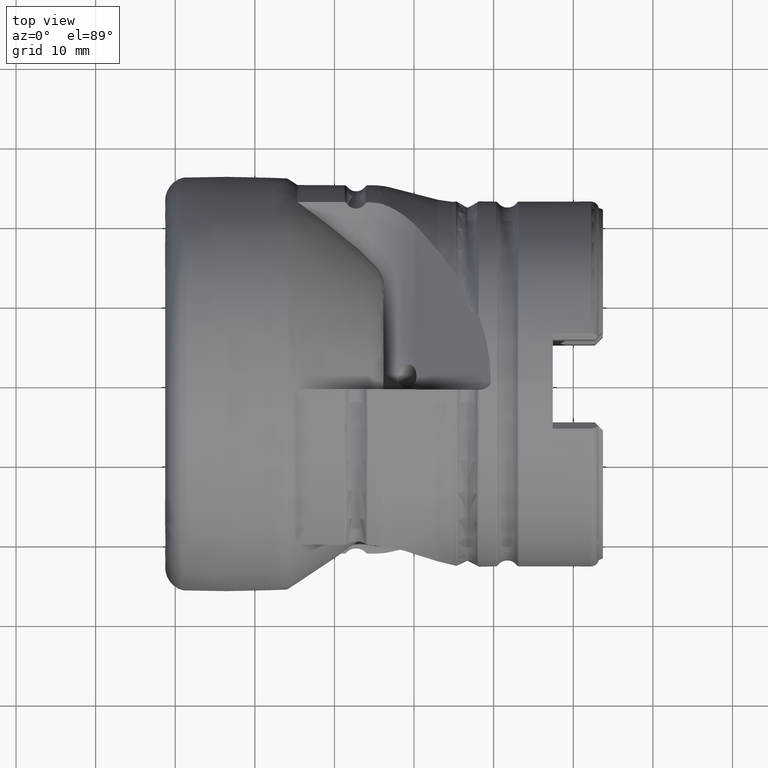
[diagram: clean part render]
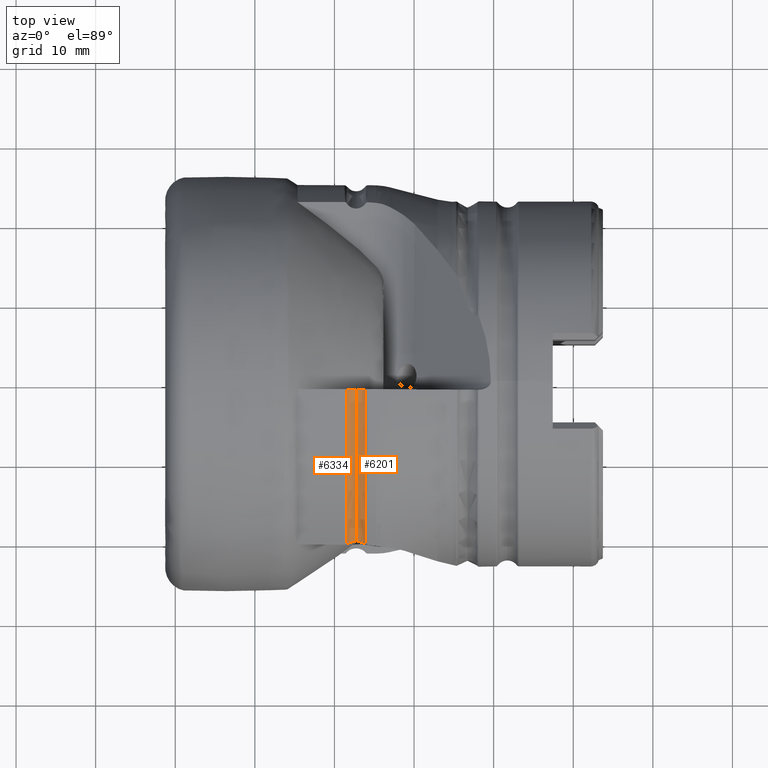
[diagram: same view with one multi-face feature highlighted, each face labeled with its STEP entity id]
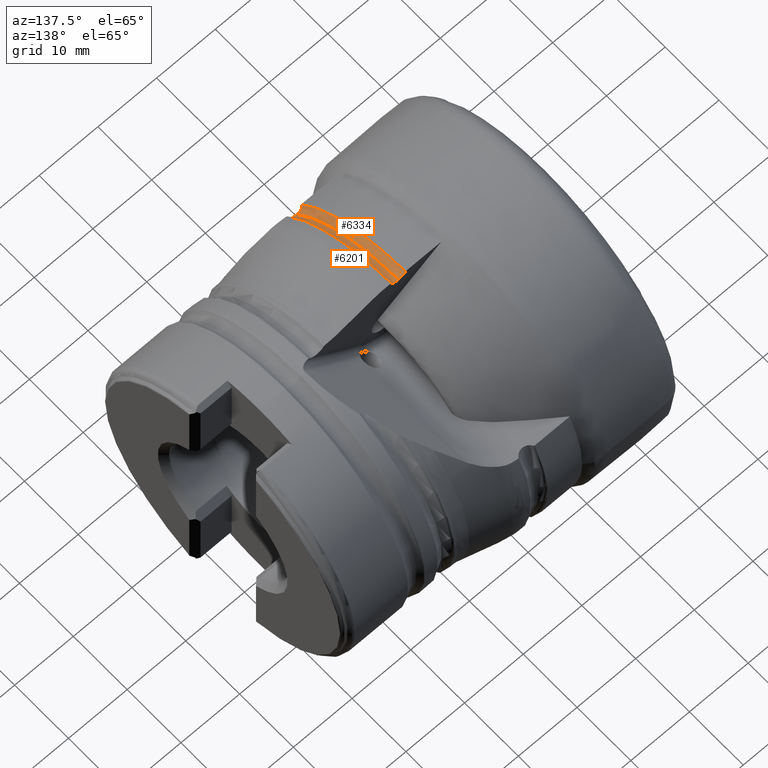
[diagram: same view with one multi-face feature highlighted, each face labeled with its STEP entity id]
A machine part, top view. The highlighted faces form ONE feature: a constant-radius fillet chain: 2 tangent blend faces with common blend radius 1.5 mm. The faces share edges in the B-rep.
A second angle (auxiliary view) of the same feature is appended — it is thin or edge-on in the first view.
Their STEP definitions:
[1] entity #6334 (Torus):
#66 = B_SPLINE_CURVE_WITH_KNOTS ( 'NONE', 3,
 ( #2435, #2404, #2402, #2436, #2437, #2438, #2439, #2440 ),
 .UNSPECIFIED., .F., .F.,
 ( 4, 2, 2, 4 ),
 ( 0.008729528105836697300, 0.009436591484580389100, 0.009790123173952235800, 0.01014365486332408400 ),
 .UNSPECIFIED. ) ;
#72 = B_SPLINE_CURVE_WITH_KNOTS ( 'NONE', 3,
 ( #2193, #2192, #2183, #2194, #2195, #2196, #2197, #2198 ),
 .UNSPECIFIED., .F., .F.,
 ( 4, 2, 2, 4 ),
 ( 0.0002780511728116997600, 0.0006409038394257694100, 0.001003756506039839100, 0.001729461839267986800 ),
 .UNSPECIFIED. ) ;
#396 = CARTESIAN_POINT ( 'NONE',  ( 21.50465070689887900, -20.36841224877557400, 14.27912488438732600 ) ) ;
#401 = CARTESIAN_POINT ( 'NONE',  ( 22.72299999999999900, -1.100000000000001600, 24.22503869965949600 ) ) ;
#994 = CARTESIAN_POINT ( 'NONE',  ( 21.50465070689888200, -1.100000000000001600, 24.85066649005616000 ) ) ;
#1832 = EDGE_CURVE ( 'NONE', #3991, #3748, #7253, .T. ) ;
#1840 = EDGE_CURVE ( 'NONE', #7147, #3996, #3196, .T. ) ;
#1850 = EDGE_CURVE ( 'NONE', #7147, #3991, #72, .T. ) ;
#1876 = EDGE_CURVE ( 'NONE', #3996, #3748, #66, .T. ) ;
#2183 = CARTESIAN_POINT ( 'NONE',  ( 22.47904005748705100, -20.03110115345837300, 13.69488492934123900 ) ) ;
#2192 = CARTESIAN_POINT ( 'NONE',  ( 22.60197085568003000, -20.02272807138518800, 13.68038232577453400 ) ) ;
#2193 = CARTESIAN_POINT ( 'NONE',  ( 22.72299999999999900, -20.02272807138518100, 13.68038232577452700 ) ) ;
#2194 = CARTESIAN_POINT ( 'NONE',  ( 22.24553393177978200, -20.06317680474768400, 13.75044158706019300 ) ) ;
#2195 = CARTESIAN_POINT ( 'NONE',  ( 22.13212054853909200, -20.08713970266454000, 13.79194654374877300 ) ) ;
#2196 = CARTESIAN_POINT ( 'NONE',  ( 21.81633428976944000, -20.17876690333944700, 13.95064951067301500 ) ) ;
#2197 = CARTESIAN_POINT ( 'NONE',  ( 21.63836564465898600, -20.26572308153014400, 14.10126202933130900 ) ) ;
#2198 = CARTESIAN_POINT ( 'NONE',  ( 21.50465070689887900, -20.36841224877557400, 14.27912488438732600 ) ) ;
#2402 = CARTESIAN_POINT ( 'NONE',  ( 22.24866572151830700, -1.100000000000001600, 24.28235209915471400 ) ) ;
#2404 = CARTESIAN_POINT ( 'NONE',  ( 22.48688400819759500, -1.100000000000001600, 24.22503869965949300 ) ) ;
#2435 = CARTESIAN_POINT ( 'NONE',  ( 22.72299999999999900, -1.100000000000001600, 24.22503869965949600 ) ) ;
#2436 = CARTESIAN_POINT ( 'NONE',  ( 21.93153609291817600, -1.100000000000001600, 24.44553247688742900 ) ) ;
#2437 = CARTESIAN_POINT ( 'NONE',  ( 21.83385517980614700, -1.100000000000001900, 24.51147374523684200 ) ) ;
#2438 = CARTESIAN_POINT ( 'NONE',  ( 21.65437906918861100, -1.100000000000001900, 24.66620421501406900 ) ) ;
#2439 = CARTESIAN_POINT ( 'NONE',  ( 21.57335040302083200, -1.100000000000001400, 24.75491542196107300 ) ) ;
#2440 = CARTESIAN_POINT ( 'NONE',  ( 21.50465070689888200, -1.100000000000001600, 24.85066649005616000 ) ) ;
#3094 = DIRECTION ( 'NONE',  ( 0.0000000000000000000, 0.0000000000000000000, 1.000000000000000000 ) ) ;
#3095 = DIRECTION ( 'NONE',  ( -1.000000000000000000, -0.0000000000000000000, -0.0000000000000000000 ) ) ;
#3096 = CARTESIAN_POINT ( 'NONE',  ( 21.50465070689888200, 0.0000000000000000000, 0.0000000000000000000 ) ) ;
#3196 = CIRCLE ( 'NONE', #6384, 24.25000000000000700 ) ;
#3748 = VERTEX_POINT ( 'NONE', #994 ) ;
#3991 = VERTEX_POINT ( 'NONE', #396 ) ;
#3996 = VERTEX_POINT ( 'NONE', #401 ) ;
#4137 = ORIENTED_EDGE ( 'NONE', *, *, #1876, .T. ) ;
#4138 = ORIENTED_EDGE ( 'NONE', *, *, #1832, .F. ) ;
#4148 = ORIENTED_EDGE ( 'NONE', *, *, #1850, .F. ) ;
#4191 = ORIENTED_EDGE ( 'NONE', *, *, #1840, .T. ) ;
#4887 = TOROIDAL_SURFACE ( 'NONE', #6661, 25.75000000000000700, 1.499999999999999300 ) ;
#4888 = FACE_OUTER_BOUND ( 'NONE', #7124, .T. ) ;
#5030 = DIRECTION ( 'NONE',  ( -1.000000000000000000, -0.0000000000000000000, -0.0000000000000000000 ) ) ;
#5167 = CARTESIAN_POINT ( 'NONE',  ( 22.72299999999999900, 0.0000000000000000000, 0.0000000000000000000 ) ) ;
#5169 = DIRECTION ( 'NONE',  ( 0.0000000000000000000, 0.0000000000000000000, 1.000000000000000000 ) ) ;
#5210 = CARTESIAN_POINT ( 'NONE',  ( 22.72299999999999900, -20.02272807138518100, 13.68038232577452700 ) ) ;
#6087 = DIRECTION ( 'NONE',  ( 0.0000000000000000000, 0.0000000000000000000, 1.000000000000000000 ) ) ;
#6334 = ADVANCED_FACE ( 'NONE', ( #4888 ), #4887, .F. ) ;
#6381 = AXIS2_PLACEMENT_3D ( 'NONE', #3096, #3095, #3094 ) ;
#6384 = AXIS2_PLACEMENT_3D ( 'NONE', #7423, #7422, #6087 ) ;
#6661 = AXIS2_PLACEMENT_3D ( 'NONE', #5167, #5030, #5169 ) ;
#7124 = EDGE_LOOP ( 'NONE', ( #4148, #4191, #4137, #4138 ) ) ;
#7147 = VERTEX_POINT ( 'NONE', #5210 ) ;
#7253 = CIRCLE ( 'NONE', #6381, 24.87500000000000000 ) ;
#7422 = DIRECTION ( 'NONE',  ( -1.000000000000000000, -0.0000000000000000000, -0.0000000000000000000 ) ) ;
#7423 = CARTESIAN_POINT ( 'NONE',  ( 22.72299999999999900, 0.0000000000000000000, 0.0000000000000000000 ) ) ;
[2] entity #6201 (Torus):
#286 = EDGE_LOOP ( 'NONE', ( #4250, #4255, #4247, #7472, #7474 ) ) ;
#401 = CARTESIAN_POINT ( 'NONE',  ( 22.72299999999999900, -1.100000000000001600, 24.22503869965949600 ) ) ;
#790 = CARTESIAN_POINT ( 'NONE',  ( 22.90801318031126100, -20.02745133456685200, 13.68856325758269900 ) ) ;
#791 = CARTESIAN_POINT ( 'NONE',  ( 23.00000000000000000, -20.03703639850140000, 13.70516507531113100 ) ) ;
#809 = CARTESIAN_POINT ( 'NONE',  ( 22.81567652410062800, -20.02272807138518100, 13.68038232577453300 ) ) ;
#810 = CARTESIAN_POINT ( 'NONE',  ( 22.72299999999999900, -20.02272807138518100, 13.68038232577452700 ) ) ;
#855 = CARTESIAN_POINT ( 'NONE',  ( 23.94134929310112300, -20.39650375020025700, 14.23896975795888200 ) ) ;
#856 = CARTESIAN_POINT ( 'NONE',  ( 23.83213678028557000, -20.30602803612425300, 14.10291435999235800 ) ) ;
#861 = CARTESIAN_POINT ( 'NONE',  ( 23.69486930141718900, -20.22629293231872400, 13.98722502084342300 ) ) ;
#862 = CARTESIAN_POINT ( 'NONE',  ( 23.37317026384890200, -20.10101267416610300, 13.80464107521494400 ) ) ;
#863 = CARTESIAN_POINT ( 'NONE',  ( 23.19257733955752700, -20.05710303542009100, 13.73992150999136900 ) ) ;
#864 = CARTESIAN_POINT ( 'NONE',  ( 23.00000000000000000, -20.03703639850140000, 13.70516507531113100 ) ) ;
#999 = CARTESIAN_POINT ( 'NONE',  ( 23.00000000000000000, -20.03703639850140000, 13.70516507531113100 ) ) ;
#1014 = CARTESIAN_POINT ( 'NONE',  ( 23.94134929310112300, -20.39650375020025700, 14.23896975795888200 ) ) ;
#1166 = CARTESIAN_POINT ( 'NONE',  ( 23.94134929310111200, -1.100000000000001600, 24.85066649005616000 ) ) ;
#1635 = CARTESIAN_POINT ( 'NONE',  ( 23.94134929310111200, 0.0000000000000000000, 0.0000000000000000000 ) ) ;
#1636 = DIRECTION ( 'NONE',  ( -1.000000000000000000, -0.0000000000000000000, -0.0000000000000000000 ) ) ;
#1637 = DIRECTION ( 'NONE',  ( 0.0000000000000000000, 0.0000000000000000000, 1.000000000000000000 ) ) ;
#1840 = EDGE_CURVE ( 'NONE', #7147, #3996, #3196, .T. ) ;
#2033 = EDGE_CURVE ( 'NONE', #3771, #3925, #3354, .T. ) ;
#2099 = EDGE_CURVE ( 'NONE', #3754, #7147, #7407, .T. ) ;
#2108 = EDGE_CURVE ( 'NONE', #3771, #3754, #7399, .T. ) ;
#3196 = CIRCLE ( 'NONE', #6384, 24.25000000000000700 ) ;
#3354 = CIRCLE ( 'NONE', #6457, 24.87500000000000000 ) ;
#3530 = FACE_OUTER_BOUND ( 'NONE', #286, .T. ) ;
#3556 = TOROIDAL_SURFACE ( 'NONE', #6521, 25.75000000000000700, 1.499999999999999300 ) ;
#3754 = VERTEX_POINT ( 'NONE', #999 ) ;
#3771 = VERTEX_POINT ( 'NONE', #1014 ) ;
#3925 = VERTEX_POINT ( 'NONE', #1166 ) ;
#3996 = VERTEX_POINT ( 'NONE', #401 ) ;
#4247 = ORIENTED_EDGE ( 'NONE', *, *, #2108, .F. ) ;
#4250 = ORIENTED_EDGE ( 'NONE', *, *, #1840, .F. ) ;
#4255 = ORIENTED_EDGE ( 'NONE', *, *, #2099, .F. ) ;
#4274 = CARTESIAN_POINT ( 'NONE',  ( 22.72299999999999900, 0.0000000000000000000, 0.0000000000000000000 ) ) ;
#4276 = DIRECTION ( 'NONE',  ( -1.000000000000000000, -0.0000000000000000000, -0.0000000000000000000 ) ) ;
#4280 = DIRECTION ( 'NONE',  ( 0.0000000000000000000, 0.0000000000000000000, 1.000000000000000000 ) ) ;
#5210 = CARTESIAN_POINT ( 'NONE',  ( 22.72299999999999900, -20.02272807138518100, 13.68038232577452700 ) ) ;
#5315 = CARTESIAN_POINT ( 'NONE',  ( 23.87260110413344400, -1.100000000000001600, 24.75484783444563100 ) ) ;
#5316 = CARTESIAN_POINT ( 'NONE',  ( 23.94134929310111200, -1.100000000000001600, 24.85066649005616000 ) ) ;
#5339 = CARTESIAN_POINT ( 'NONE',  ( 23.79139121321570700, -1.100000000000001900, 24.66597316364948300 ) ) ;
#5340 = CARTESIAN_POINT ( 'NONE',  ( 23.61189426211670600, -1.100000000000001400, 24.51129082837389800 ) ) ;
#5341 = CARTESIAN_POINT ( 'NONE',  ( 23.51412358064273500, -1.100000000000001600, 24.44530160513445000 ) ) ;
#5342 = CARTESIAN_POINT ( 'NONE',  ( 23.30227142371044000, -1.100000000000001900, 24.33640399554089500 ) ) ;
#5343 = CARTESIAN_POINT ( 'NONE',  ( 23.19048749589820300, -1.100000000000001600, 24.29494140469903100 ) ) ;
#5344 = CARTESIAN_POINT ( 'NONE',  ( 22.96107316889191800, -1.100000000000002100, 24.23937204952171200 ) ) ;
#5345 = CARTESIAN_POINT ( 'NONE',  ( 22.84114580450741300, -1.100000000000001600, 24.22503869965949300 ) ) ;
#5346 = CARTESIAN_POINT ( 'NONE',  ( 22.72299999999999900, -1.100000000000001600, 24.22503869965949600 ) ) ;
#6087 = DIRECTION ( 'NONE',  ( 0.0000000000000000000, 0.0000000000000000000, 1.000000000000000000 ) ) ;
#6201 = ADVANCED_FACE ( 'NONE', ( #3530 ), #3556, .F. ) ;
#6384 = AXIS2_PLACEMENT_3D ( 'NONE', #7423, #7422, #6087 ) ;
#6457 = AXIS2_PLACEMENT_3D ( 'NONE', #1635, #1636, #1637 ) ;
#6521 = AXIS2_PLACEMENT_3D ( 'NONE', #4274, #4276, #4280 ) ;
#7147 = VERTEX_POINT ( 'NONE', #5210 ) ;
#7284 = EDGE_CURVE ( 'NONE', #3925, #3996, #7329, .T. ) ;
#7329 = B_SPLINE_CURVE_WITH_KNOTS ( 'NONE', 3,
 ( #5316, #5315, #5339, #5340, #5341, #5342, #5343, #5344, #5345, #5346 ),
 .UNSPECIFIED., .F., .F.,
 ( 4, 2, 2, 2, 4 ),
 ( 0.007314349555976944500, 0.007668144193441882300, 0.008021938830906821800, 0.008375733468371759600, 0.008729528105836697300 ),
 .UNSPECIFIED. ) ;
#7399 = B_SPLINE_CURVE_WITH_KNOTS ( 'NONE', 3,
 ( #855, #856, #861, #862, #863, #864 ),
 .UNSPECIFIED., .F., .F.,
 ( 4, 2, 4 ),
 ( 3.550838894708744000E-007, 0.0005819620364490713000, 0.001163568989008671900 ),
 .UNSPECIFIED. ) ;
#7407 = B_SPLINE_CURVE_WITH_KNOTS ( 'NONE', 3,
 ( #791, #790, #809, #810 ),
 .UNSPECIFIED., .F., .F.,
 ( 4, 4 ),
 ( 2.013698457905650800E-007, 0.0002780511728116997600 ),
 .UNSPECIFIED. ) ;
#7422 = DIRECTION ( 'NONE',  ( -1.000000000000000000, -0.0000000000000000000, -0.0000000000000000000 ) ) ;
#7423 = CARTESIAN_POINT ( 'NONE',  ( 22.72299999999999900, 0.0000000000000000000, 0.0000000000000000000 ) ) ;
#7472 = ORIENTED_EDGE ( 'NONE', *, *, #2033, .T. ) ;
#7474 = ORIENTED_EDGE ( 'NONE', *, *, #7284, .T. ) ;